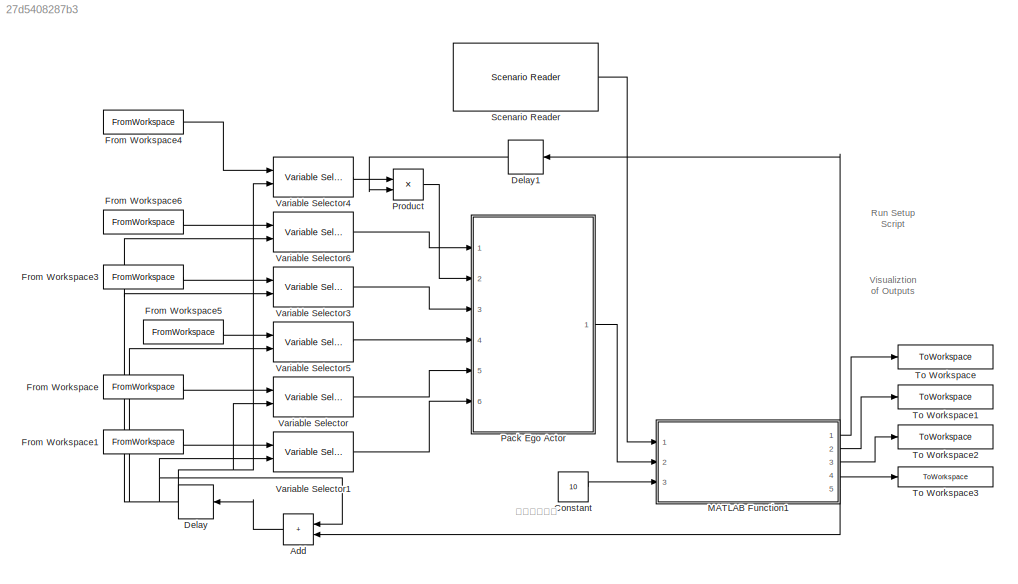
MODEL slx_27d5408287b3
KIND model
CONFIG AbsTol = auto
CONFIG EnableMultiTasking = off
CONFIG FixedStep = auto
CONFIG MaxStep = auto
CONFIG MinStep = auto
CONFIG RelTol = 1e-3
CONFIG SampleTimeConstraint = Unconstrained
CONFIG SolverName = FixedStepDiscrete
CONFIG StartTime = 0.0
CONFIG StopTime = 10.0
WORKSPACE source: mxarray member
WORKSPACE EgoCarParams: object (value not decoded)
BLOCK [Sum] Add
  IconShape = rectangular
  Ports = [2, 1]
BLOCK [Constant] Constant
  Value = 10
BLOCK [Delay] Delay
  DelayLength = 1
  InitialCondition = 0
  InputPortMap = u0
  NameLocation = top
  Ports = [1, 1]
BLOCK [Delay] Delay1
  DelayLength = 1
  InitialCondition = 0
  InputPortMap = u0
  NameLocation = top
  Ports = [1, 1]
BLOCK [FromWorkspace] From Workspace
  VariableName = x1
BLOCK [FromWorkspace] From Workspace1
  VariableName = y1
BLOCK [FromWorkspace] From Workspace3
  VariableName = Yaw1
BLOCK [FromWorkspace] From Workspace4
  VariableName = Velocity1
BLOCK [FromWorkspace] From Workspace5
  VariableName = AngularVelocity1
BLOCK [FromWorkspace] From Workspace6
  VariableName = ActorID1
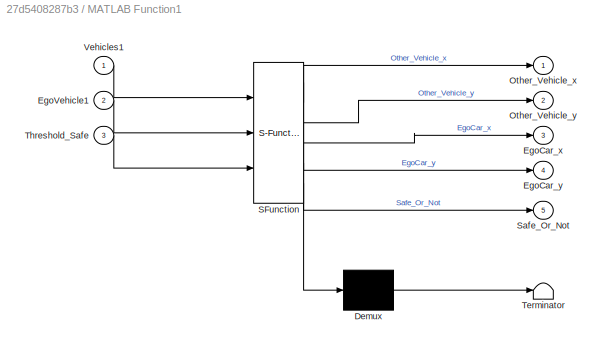
BLOCK [SubSystem] MATLAB Function1
  ErrorFcn = Stateflow.Translate.translate
  PermitHierarchicalResolution = ExplicitOnly
  Ports = [3, 5]
  RequestExecContextInheritance = off
  SFBlockType = MATLAB Function
  TreatAsAtomicUnit = on
BLOCK [Demux] MATLAB Function1/ Demux 
  Outputs = 1
  Ports = [1, 1]
BLOCK [S-Function] MATLAB Function1/ SFunction 
  EnableBusSupport = on
  FunctionName = sf_sfun
  PortCounts = [3 6]
  Ports = [3, 6]
  SFcnIsStateOwnerBlock = off
  SFunctionDeploymentMode = off
  Tag = Stateflow S-Function 2
BLOCK [Terminator] MATLAB Function1/ Terminator 
BLOCK [Outport] MATLAB Function1/EgoCar_x
  Port = 3
BLOCK [Outport] MATLAB Function1/EgoCar_y
  Port = 4
BLOCK [Inport] MATLAB Function1/EgoVehicle1
  Port = 2
BLOCK [Outport] MATLAB Function1/Other_Vehicle_x
BLOCK [Outport] MATLAB Function1/Other_Vehicle_y
  Port = 2
BLOCK [Outport] MATLAB Function1/Safe_Or_Not
  Port = 5
BLOCK [Inport] MATLAB Function1/Threshold_Safe
  Port = 3
BLOCK [Inport] MATLAB Function1/Vehicles1
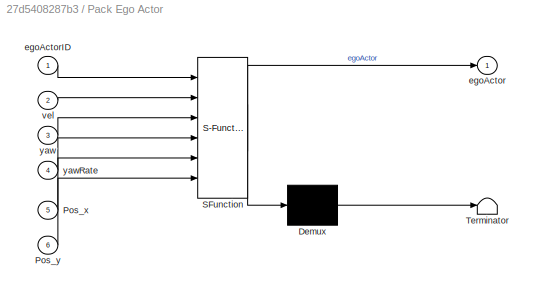
BLOCK [SubSystem] Pack Ego Actor
  ErrorFcn = Stateflow.Translate.translate
  PermitHierarchicalResolution = ExplicitOnly
  Ports = [6, 1]
  RequestExecContextInheritance = off
  SFBlockType = MATLAB Function
  TreatAsAtomicUnit = on
BLOCK [Demux] Pack Ego Actor/ Demux 
  Outputs = 1
  Ports = [1, 1]
BLOCK [S-Function] Pack Ego Actor/ SFunction 
  EnableBusSupport = on
  FunctionName = sf_sfun
  PortCounts = [6 2]
  Ports = [6, 2]
  SFcnIsStateOwnerBlock = off
  SFunctionDeploymentMode = off
  Tag = Stateflow S-Function 5
BLOCK [Terminator] Pack Ego Actor/ Terminator 
BLOCK [Inport] Pack Ego Actor/Pos_x
  Port = 5
BLOCK [Inport] Pack Ego Actor/Pos_y
  Port = 6
BLOCK [Outport] Pack Ego Actor/egoActor
  VectorParamsAs1DForOutWhenUnconnected = off
BLOCK [Inport] Pack Ego Actor/egoActorID
BLOCK [Inport] Pack Ego Actor/vel
  Port = 2
BLOCK [Inport] Pack Ego Actor/yaw
  Port = 3
BLOCK [Inport] Pack Ego Actor/yawRate
  Port = 4
BLOCK [Product] Product
  Ports = [2, 1]
BLOCK [Reference] Scenario Reader  REF=drivingscenarioandsensors/Scenario Reader
  Ports = [0, 1]
  SourceBlock = drivingscenarioandsensors/Scenario Reader
  SourceProductBaseCode = DR
  SourceType = driving.scenario.internal.ScenarioReader
BLOCK [ToWorkspace] To Workspace
  MaxDataPoints = inf
  Ports = [1]
  SampleTime = -1
  Save2DSignal = 2-D array (concatenate along first dimension)
  VariableName = Other_V_x
BLOCK [ToWorkspace] To Workspace1
  MaxDataPoints = inf
  Ports = [1]
  SampleTime = -1
  Save2DSignal = 2-D array (concatenate along first dimension)
  VariableName = Other_V_y
BLOCK [ToWorkspace] To Workspace2
  MaxDataPoints = inf
  Ports = [1]
  SampleTime = -1
  Save2DSignal = 2-D array (concatenate along first dimension)
  VariableName = EgoCar_x
BLOCK [ToWorkspace] To Workspace3
  MaxDataPoints = inf
  Ports = [1]
  SampleTime = -1
  Save2DSignal = 2-D array (concatenate along first dimension)
  VariableName = EgoCar_y
BLOCK [Reference] Variable Selector  REF=dspindex/Variable
Selector
  Ports = [2, 1]
  SourceBlock = dspindex/Variable\nSelector
  SourceProductBaseCode = DS
  SourceType = Variable Selector
BLOCK [Reference] Variable Selector1  REF=dspindex/Variable
Selector
  Ports = [2, 1]
  SourceBlock = dspindex/Variable\nSelector
  SourceProductBaseCode = DS
  SourceType = Variable Selector
BLOCK [Reference] Variable Selector3  REF=dspindex/Variable
Selector
  Ports = [2, 1]
  SourceBlock = dspindex/Variable\nSelector
  SourceProductBaseCode = DS
  SourceType = Variable Selector
BLOCK [Reference] Variable Selector4  REF=dspindex/Variable
Selector
  Ports = [2, 1]
  SourceBlock = dspindex/Variable\nSelector
  SourceProductBaseCode = DS
  SourceType = Variable Selector
BLOCK [Reference] Variable Selector5  REF=dspindex/Variable
Selector
  Ports = [2, 1]
  SourceBlock = dspindex/Variable\nSelector
  SourceProductBaseCode = DS
  SourceType = Variable Selector
BLOCK [Reference] Variable Selector6  REF=dspindex/Variable
Selector
  Ports = [2, 1]
  SourceBlock = dspindex/Variable\nSelector
  SourceProductBaseCode = DS
  SourceType = Variable Selector
ANNOTATION (root): Run Setup Script
ANNOTATION (root): Visualiztion of Outputs
ANNOTATION (root): 安全距离阈值
LINE Add:1 -> Delay:1
LINE Constant:1 -> MATLAB Function1:3
LINE Delay1:1 -> Product:2
NET Delay:1 -> Add:1, Variable Selector1:2, Variable Selector3:2, Variable Selector4:2, Variable Selector5:2, Variable Selector6:2, Variable Selector:2
LINE From Workspace1:1 -> Variable Selector1:1
LINE From Workspace3:1 -> Variable Selector3:1
LINE From Workspace4:1 -> Variable Selector4:1
LINE From Workspace5:1 -> Variable Selector5:1
LINE From Workspace6:1 -> Variable Selector6:1
LINE From Workspace:1 -> Variable Selector:1
LINE MATLAB Function1:1 -> To Workspace:1
LINE MATLAB Function1:2 -> To Workspace1:1
LINE MATLAB Function1:3 -> To Workspace2:1
LINE MATLAB Function1:4 -> To Workspace3:1
NET MATLAB Function1:5 -> Add:2, Delay1:1
LINE Pack Ego Actor:1 -> MATLAB Function1:2
LINE Product:1 -> Pack Ego Actor:2
LINE Scenario Reader:1 -> MATLAB Function1:1
LINE Variable Selector1:1 -> Pack Ego Actor:6
LINE Variable Selector3:1 -> Pack Ego Actor:3
LINE Variable Selector4:1 -> Product:1
LINE Variable Selector5:1 -> Pack Ego Actor:4
LINE Variable Selector6:1 -> Pack Ego Actor:1
LINE Variable Selector:1 -> Pack Ego Actor:5
note: NET lines group one-source signal fan-out (src -> all destinations, sorted); 1:1 wires keep LINE
CHART MATLAB Function1 states=1 transitions=1
  STATE_LABEL 'eML_blk_kernel()'
  STATE_LABEL 'SCRIPT:\nfunction [Other_Vehicle_x,Other_Vehicle_y,EgoCar_x,EgoCar_y ,Safe_Or_Not] = Dist_Cal (Vehicles1, EgoVehicle1,Threshold_Safe)\n\nOther_Vehicle_x=Vehicles1.Actors(2).Position(:,1);\nOther_Vehicle_y=Vehicles1.Actors(2).Position(:,2);\n\nEgoCar_x=EgoVehicle1.Position(:,1);\nEgoCar_y=EgoVehicle1.Position(:,2);\n\nDistance_1=sqrt((Other_Vehicle_x-EgoCar_x)^2+(Other_Vehicle_y-EgoCar_y)^2);\n\n\nif Distance_...<+71ch>'
CHART Pack Ego Actor states=1 transitions=1
  STATE_LABEL 'eML_blk_kernel()'
  STATE_LABEL "SCRIPT:\nfunction egoActor = packEgo(egoActorID,vel,yaw,yawRate,Pos_x,Pos_y)\n% Pack ego information into a single ego actor bus\n%\n% Imoprtant note:\n% Output is a bus of type BusActorsActors. This is the same bus used by the\n% Scenario Reader to output an individual actor. If you change the\n% output bus name of Scenario Reader, change the output bus name here\n% as well by clicking on 'Edit Data' in ...<+272ch>"
CHART  states=0 transitions=0
CHART  states=0 transitions=0
